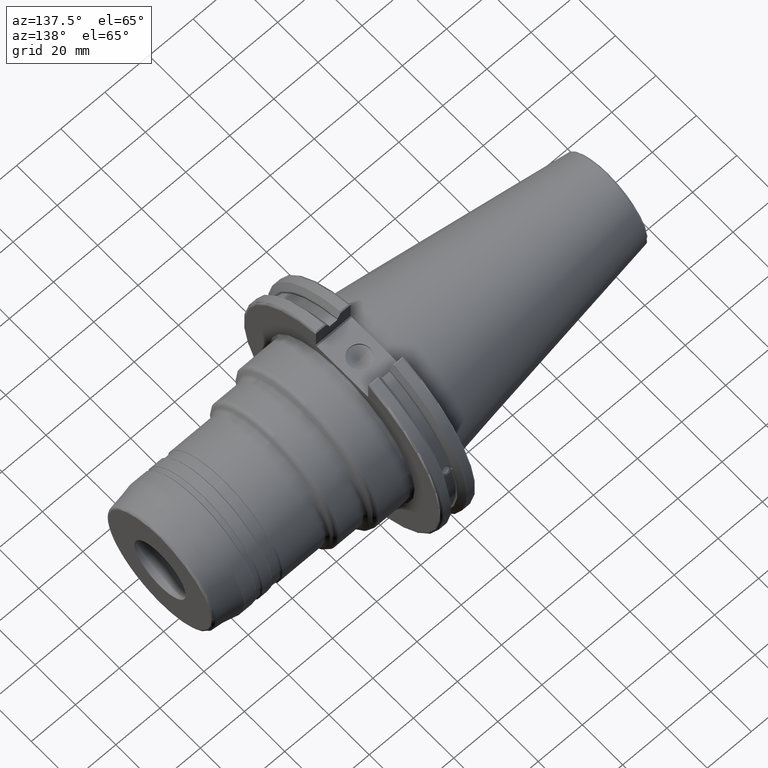
[diagram: clean part render]
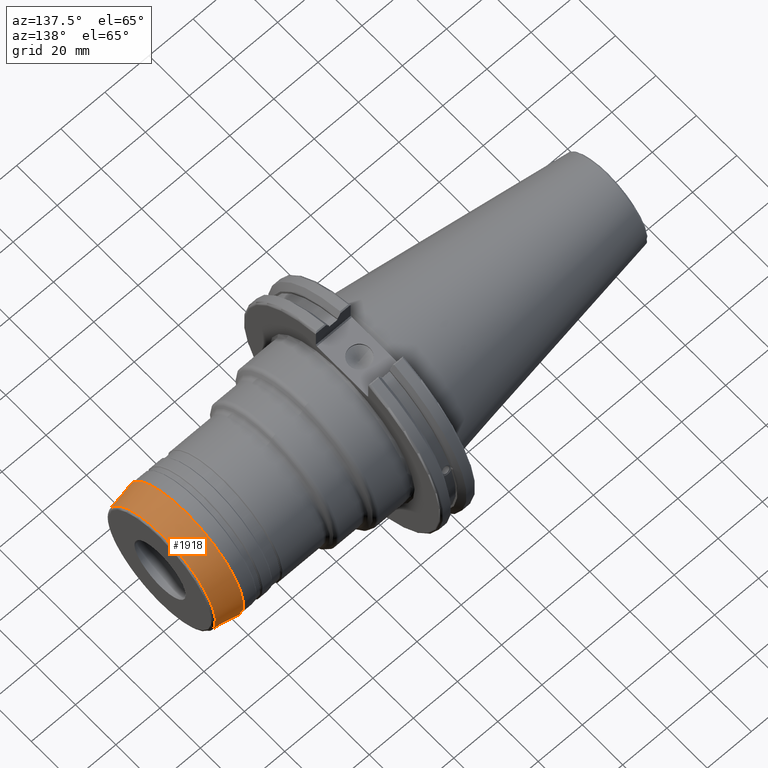
[diagram: same view with one face highlighted and labeled with its STEP entity id]
A machine part, auxiliary view. The second image highlights one B-rep face of the part: STEP entity #1918.
In plain terms, the highlighted conical surface has half-angle 10 deg.
Its self-contained STEP definition (entity closure, byte-faithful):
#98=CONICAL_SURFACE('',#2123,27.45,0.174532925199432);
#198=FACE_OUTER_BOUND('',#310,.T.);
#310=EDGE_LOOP('',(#1430,#1431,#1432,#1433,#1434,#1435));
#424=LINE('',#3133,#529);
#529=VECTOR('',#2495,27.45);
#687=CIRCLE('',#2120,28.4848077530122);
#688=CIRCLE('',#2121,28.4848077530122);
#690=CIRCLE('',#2124,26.5457081218349);
#691=CIRCLE('',#2125,26.5457081218349);
#816=VERTEX_POINT('',#3124);
#817=VERTEX_POINT('',#3125);
#818=VERTEX_POINT('',#3130);
#819=VERTEX_POINT('',#3131);
#1045=EDGE_CURVE('',#816,#817,#687,.T.);
#1046=EDGE_CURVE('',#817,#816,#688,.T.);
#1048=EDGE_CURVE('',#818,#819,#690,.T.);
#1049=EDGE_CURVE('',#818,#817,#424,.T.);
#1050=EDGE_CURVE('',#819,#818,#691,.T.);
#1430=ORIENTED_EDGE('',*,*,#1048,.F.);
#1431=ORIENTED_EDGE('',*,*,#1049,.T.);
#1432=ORIENTED_EDGE('',*,*,#1045,.F.);
#1433=ORIENTED_EDGE('',*,*,#1046,.F.);
#1434=ORIENTED_EDGE('',*,*,#1049,.F.);
#1435=ORIENTED_EDGE('',*,*,#1050,.F.);
#1918=ADVANCED_FACE('',(#198),#98,.T.);
#2120=AXIS2_PLACEMENT_3D('',#3126,#2485,#2486);
#2121=AXIS2_PLACEMENT_3D('',#3127,#2487,#2488);
#2123=AXIS2_PLACEMENT_3D('',#3129,#2491,#2492);
#2124=AXIS2_PLACEMENT_3D('',#3132,#2493,#2494);
#2125=AXIS2_PLACEMENT_3D('',#3134,#2496,#2497);
#2485=DIRECTION('center_axis',(-1.,0.,0.));
#2486=DIRECTION('ref_axis',(0.,-1.,3.06161699786838E-17));
#2487=DIRECTION('center_axis',(-1.,0.,0.));
#2488=DIRECTION('ref_axis',(0.,-1.,3.06161699786838E-17));
#2491=DIRECTION('center_axis',(-1.,0.,0.));
#2492=DIRECTION('ref_axis',(0.,1.,0.));
#2493=DIRECTION('center_axis',(1.,0.,0.));
#2494=DIRECTION('ref_axis',(0.,-1.,3.06161699786838E-17));
#2495=DIRECTION('',(-0.984807753012208,-0.173648177666929,-2.12657684957576E-17));
#2496=DIRECTION('center_axis',(1.,0.,0.));
#2497=DIRECTION('ref_axis',(0.,-1.,3.06161699786838E-17));
#3124=CARTESIAN_POINT('',(89.7764676929438,-3.48838286390541E-15,28.4848077530122));
#3125=CARTESIAN_POINT('',(89.7764676929438,-28.4848077530122,-3.48838286390541E-15));
#3126=CARTESIAN_POINT('Origin',(89.7764676929438,0.,-4.36047857988176E-15));
#3127=CARTESIAN_POINT('Origin',(89.7764676929438,0.,-4.36047857988176E-15));
#3129=CARTESIAN_POINT('Origin',(95.6451540894014,0.,0.));
#3130=CARTESIAN_POINT('',(100.773648177667,-26.5457081218349,-3.2509116482505E-15));
#3131=CARTESIAN_POINT('',(100.773648177667,-3.2509116482505E-15,26.5457081218349));
#3132=CARTESIAN_POINT('Origin',(100.773648177667,0.,-4.06363956031313E-15));
#3133=CARTESIAN_POINT('',(95.6451540894014,-27.45,-3.36165546365948E-15));
#3134=CARTESIAN_POINT('Origin',(100.773648177667,0.,-4.06363956031313E-15));